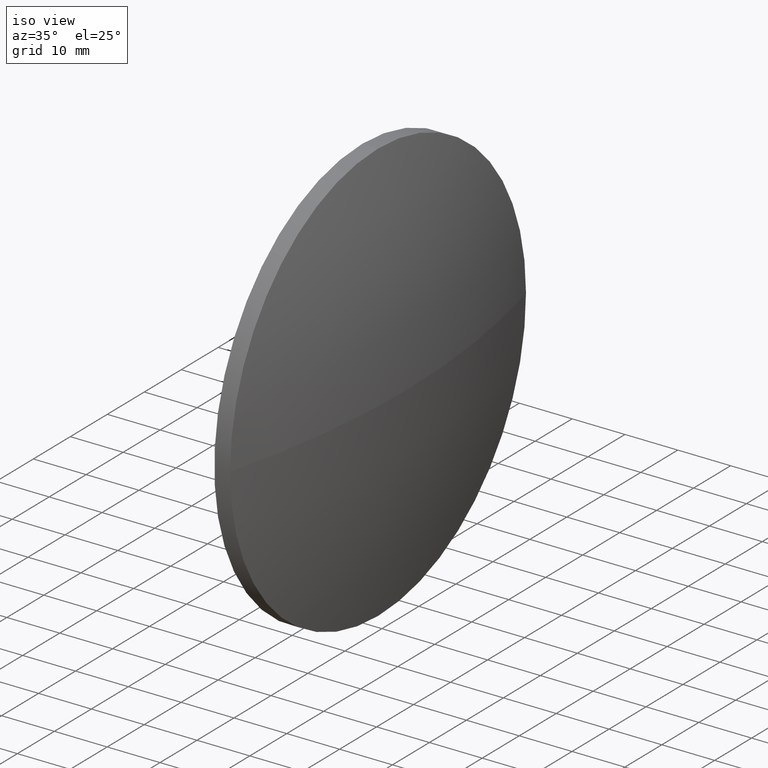
[diagram: clean part render]
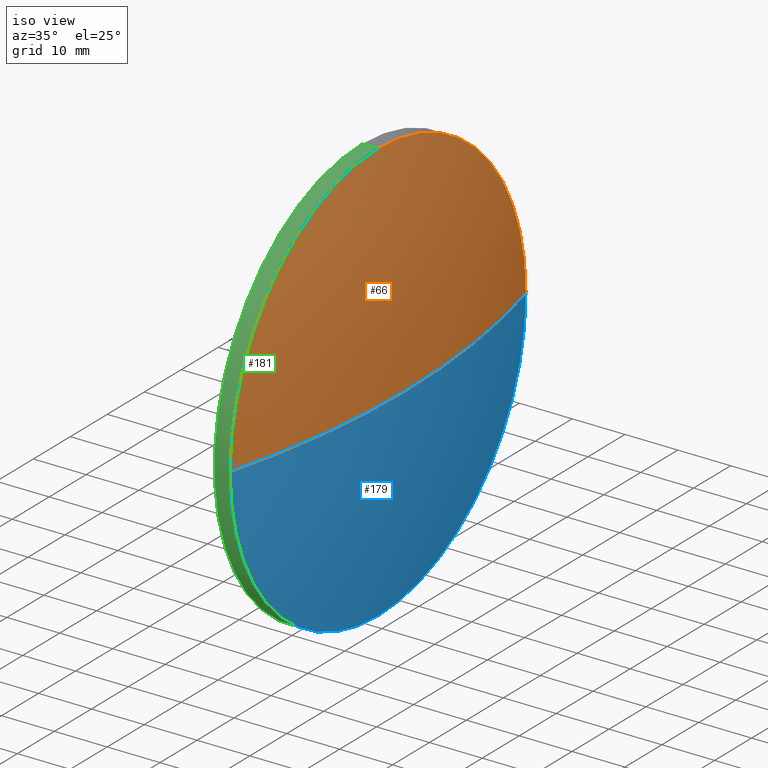
[diagram: same view with three faces highlighted in distinct colors, each labeled with its STEP entity id]
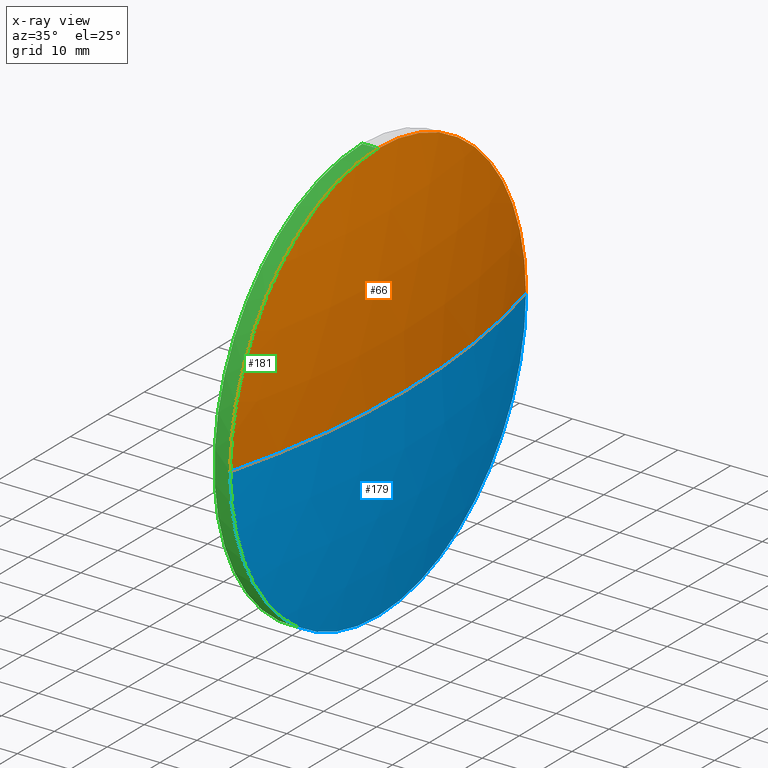
[diagram: x-ray of the same camera — body ghosted, the three highlighted faces saturated]
A machine part, iso view with three faces highlighted in distinct colors.
The next image is the same camera in x-ray (body ghosted, the three faces saturated) — at least one of them is partly hidden behind the body in this view.
Their STEP definitions:

[orange] entity #66 — the highlighted spherical surface has radius 155.006 mm.
#9 = ORIENTED_EDGE ( 'NONE', *, *, #149, .T. ) ;
#10 = AXIS2_PLACEMENT_3D ( 'NONE', #29, #44, #157 ) ;
#13 = DIRECTION ( 'NONE',  ( 0.0000000000000000000, 0.0000000000000000000, 1.000000000000000000 ) ) ;
#17 = DIRECTION ( 'NONE',  ( 0.0000000000000000000, -1.000000000000000000, -1.224646799147353200E-016 ) ) ;
#19 = AXIS2_PLACEMENT_3D ( 'NONE', #95, #152, #71 ) ;
#24 = SPHERICAL_SURFACE ( 'NONE', #19, 155.0059523809526600 ) ;
#29 = CARTESIAN_POINT ( 'NONE',  ( 79.19314184306821900, 130.4671098528244800, 0.0000000000000000000 ) ) ;
#44 = DIRECTION ( 'NONE',  ( 0.0000000000000000000, 0.0000000000000000000, -1.000000000000000000 ) ) ;
#46 = CARTESIAN_POINT ( 'NONE',  ( 234.1990942240208800, 130.4671098528244800, 0.0000000000000000000 ) ) ;
#50 = CARTESIAN_POINT ( 'NONE',  ( 79.19314184306821900, 130.4671098528244800, 0.0000000000000000000 ) ) ;
#55 = ORIENTED_EDGE ( 'NONE', *, *, #87, .F. ) ;
#59 = CARTESIAN_POINT ( 'NONE',  ( 228.9490942240209100, 130.4671098528244200, 0.0000000000000000000 ) ) ;
#61 = CIRCLE ( 'NONE', #128, 40.00000000000000700 ) ;
#66 = ADVANCED_FACE ( 'NONE', ( #170 ), #24, .T. ) ;
#67 = EDGE_LOOP ( 'NONE', ( #89, #9, #161, #55 ) ) ;
#70 = DIRECTION ( 'NONE',  ( 0.0000000000000000000, 0.0000000000000000000, 1.000000000000000000 ) ) ;
#71 = DIRECTION ( 'NONE',  ( 0.0000000000000000000, -1.000000000000000000, 0.0000000000000000000 ) ) ;
#76 = CARTESIAN_POINT ( 'NONE',  ( 228.9490942240209100, 130.4671098528244200, 40.00000000000000700 ) ) ;
#77 = AXIS2_PLACEMENT_3D ( 'NONE', #50, #101, #17 ) ;
#78 = EDGE_CURVE ( 'NONE', #150, #145, #61, .T. ) ;
#87 = EDGE_CURVE ( 'NONE', #125, #150, #132, .T. ) ;
#89 = ORIENTED_EDGE ( 'NONE', *, *, #105, .F. ) ;
#95 = CARTESIAN_POINT ( 'NONE',  ( 79.19314184306821900, 130.4671098528244800, 0.0000000000000000000 ) ) ;
#96 = DIRECTION ( 'NONE',  ( -1.000000000000000000, -0.0000000000000000000, -0.0000000000000000000 ) ) ;
#97 = CARTESIAN_POINT ( 'NONE',  ( 228.9490942240208800, 170.4671098528244200, 4.898587196589408300E-015 ) ) ;
#101 = DIRECTION ( 'NONE',  ( 0.0000000000000000000, -1.224646799147353200E-016, 1.000000000000000000 ) ) ;
#103 = VERTEX_POINT ( 'NONE', #46 ) ;
#105 = EDGE_CURVE ( 'NONE', #103, #125, #163, .T. ) ;
#125 = VERTEX_POINT ( 'NONE', #129 ) ;
#128 = AXIS2_PLACEMENT_3D ( 'NONE', #59, #96, #13 ) ;
#129 = CARTESIAN_POINT ( 'NONE',  ( 228.9490942240208800, 90.46710985282446400, 0.0000000000000000000 ) ) ;
#132 = CIRCLE ( 'NONE', #144, 40.00000000000000700 ) ;
#144 = AXIS2_PLACEMENT_3D ( 'NONE', #165, #154, #70 ) ;
#145 = VERTEX_POINT ( 'NONE', #97 ) ;
#149 = EDGE_CURVE ( 'NONE', #103, #145, #162, .T. ) ;
#150 = VERTEX_POINT ( 'NONE', #76 ) ;
#152 = DIRECTION ( 'NONE',  ( 0.0000000000000000000, 0.0000000000000000000, 1.000000000000000000 ) ) ;
#154 = DIRECTION ( 'NONE',  ( -1.000000000000000000, -0.0000000000000000000, -0.0000000000000000000 ) ) ;
#157 = DIRECTION ( 'NONE',  ( -1.000000000000000000, 0.0000000000000000000, 0.0000000000000000000 ) ) ;
#161 = ORIENTED_EDGE ( 'NONE', *, *, #78, .F. ) ;
#162 = CIRCLE ( 'NONE', #77, 155.0059523809526600 ) ;
#163 = CIRCLE ( 'NONE', #10, 155.0059523809526600 ) ;
#165 = CARTESIAN_POINT ( 'NONE',  ( 228.9490942240209100, 130.4671098528244200, 0.0000000000000000000 ) ) ;
#170 = FACE_OUTER_BOUND ( 'NONE', #67, .T. ) ;

[blue] entity #179 — the highlighted spherical surface has radius 155.006 mm.
#1 = DIRECTION ( 'NONE',  ( 0.0000000000000000000, 0.0000000000000000000, 1.000000000000000000 ) ) ;
#2 = AXIS2_PLACEMENT_3D ( 'NONE', #110, #141, #62 ) ;
#5 = ORIENTED_EDGE ( 'NONE', *, *, #105, .T. ) ;
#6 = CARTESIAN_POINT ( 'NONE',  ( 79.19314184306821900, 130.4671098528244800, 0.0000000000000000000 ) ) ;
#10 = AXIS2_PLACEMENT_3D ( 'NONE', #29, #44, #157 ) ;
#17 = DIRECTION ( 'NONE',  ( 0.0000000000000000000, -1.000000000000000000, -1.224646799147353200E-016 ) ) ;
#22 = CIRCLE ( 'NONE', #107, 40.00000000000000700 ) ;
#29 = CARTESIAN_POINT ( 'NONE',  ( 79.19314184306821900, 130.4671098528244800, 0.0000000000000000000 ) ) ;
#30 = AXIS2_PLACEMENT_3D ( 'NONE', #6, #34, #31 ) ;
#31 = DIRECTION ( 'NONE',  ( 0.0000000000000000000, -1.000000000000000000, 0.0000000000000000000 ) ) ;
#34 = DIRECTION ( 'NONE',  ( 0.0000000000000000000, 0.0000000000000000000, 1.000000000000000000 ) ) ;
#37 = ORIENTED_EDGE ( 'NONE', *, *, #164, .F. ) ;
#44 = DIRECTION ( 'NONE',  ( 0.0000000000000000000, 0.0000000000000000000, -1.000000000000000000 ) ) ;
#45 = SPHERICAL_SURFACE ( 'NONE', #30, 155.0059523809526600 ) ;
#46 = CARTESIAN_POINT ( 'NONE',  ( 234.1990942240208800, 130.4671098528244800, 0.0000000000000000000 ) ) ;
#50 = CARTESIAN_POINT ( 'NONE',  ( 79.19314184306821900, 130.4671098528244800, 0.0000000000000000000 ) ) ;
#52 = ORIENTED_EDGE ( 'NONE', *, *, #94, .F. ) ;
#60 = DIRECTION ( 'NONE',  ( -1.000000000000000000, -0.0000000000000000000, -0.0000000000000000000 ) ) ;
#62 = DIRECTION ( 'NONE',  ( 0.0000000000000000000, 0.0000000000000000000, 1.000000000000000000 ) ) ;
#74 = CARTESIAN_POINT ( 'NONE',  ( 228.9490942240209100, 130.4671098528244200, -40.00000000000000700 ) ) ;
#77 = AXIS2_PLACEMENT_3D ( 'NONE', #50, #101, #17 ) ;
#82 = CIRCLE ( 'NONE', #2, 40.00000000000000700 ) ;
#85 = CARTESIAN_POINT ( 'NONE',  ( 228.9490942240209100, 130.4671098528244200, 0.0000000000000000000 ) ) ;
#94 = EDGE_CURVE ( 'NONE', #121, #125, #22, .T. ) ;
#97 = CARTESIAN_POINT ( 'NONE',  ( 228.9490942240208800, 170.4671098528244200, 4.898587196589408300E-015 ) ) ;
#101 = DIRECTION ( 'NONE',  ( 0.0000000000000000000, -1.224646799147353200E-016, 1.000000000000000000 ) ) ;
#103 = VERTEX_POINT ( 'NONE', #46 ) ;
#105 = EDGE_CURVE ( 'NONE', #103, #125, #163, .T. ) ;
#107 = AXIS2_PLACEMENT_3D ( 'NONE', #85, #60, #1 ) ;
#110 = CARTESIAN_POINT ( 'NONE',  ( 228.9490942240209100, 130.4671098528244200, 0.0000000000000000000 ) ) ;
#112 = FACE_OUTER_BOUND ( 'NONE', #166, .T. ) ;
#121 = VERTEX_POINT ( 'NONE', #74 ) ;
#125 = VERTEX_POINT ( 'NONE', #129 ) ;
#129 = CARTESIAN_POINT ( 'NONE',  ( 228.9490942240208800, 90.46710985282446400, 0.0000000000000000000 ) ) ;
#131 = ORIENTED_EDGE ( 'NONE', *, *, #149, .F. ) ;
#141 = DIRECTION ( 'NONE',  ( -1.000000000000000000, -0.0000000000000000000, -0.0000000000000000000 ) ) ;
#145 = VERTEX_POINT ( 'NONE', #97 ) ;
#149 = EDGE_CURVE ( 'NONE', #103, #145, #162, .T. ) ;
#157 = DIRECTION ( 'NONE',  ( -1.000000000000000000, 0.0000000000000000000, 0.0000000000000000000 ) ) ;
#162 = CIRCLE ( 'NONE', #77, 155.0059523809526600 ) ;
#163 = CIRCLE ( 'NONE', #10, 155.0059523809526600 ) ;
#164 = EDGE_CURVE ( 'NONE', #145, #121, #82, .T. ) ;
#166 = EDGE_LOOP ( 'NONE', ( #131, #5, #52, #37 ) ) ;
#179 = ADVANCED_FACE ( 'NONE', ( #112 ), #45, .T. ) ;

[green] entity #181 — the highlighted cylindrical surface (partial cylindrical patch) has radius 40 mm, axis along (-1, -0, -0).
#1 = DIRECTION ( 'NONE',  ( 0.0000000000000000000, 0.0000000000000000000, 1.000000000000000000 ) ) ;
#4 = CARTESIAN_POINT ( 'NONE',  ( 225.9490942240209100, 130.4671098528244200, 0.0000000000000000000 ) ) ;
#22 = CIRCLE ( 'NONE', #107, 40.00000000000000700 ) ;
#26 = VERTEX_POINT ( 'NONE', #142 ) ;
#33 = CIRCLE ( 'NONE', #146, 40.00000000000000700 ) ;
#35 = EDGE_CURVE ( 'NONE', #150, #81, #65, .T. ) ;
#36 = DIRECTION ( 'NONE',  ( -1.000000000000000000, -0.0000000000000000000, -0.0000000000000000000 ) ) ;
#38 = DIRECTION ( 'NONE',  ( -1.000000000000000000, -0.0000000000000000000, -0.0000000000000000000 ) ) ;
#40 = ORIENTED_EDGE ( 'NONE', *, *, #35, .T. ) ;
#43 = ORIENTED_EDGE ( 'NONE', *, *, #136, .F. ) ;
#47 = AXIS2_PLACEMENT_3D ( 'NONE', #102, #36, #126 ) ;
#58 = DIRECTION ( 'NONE',  ( 0.0000000000000000000, 0.0000000000000000000, 1.000000000000000000 ) ) ;
#60 = DIRECTION ( 'NONE',  ( -1.000000000000000000, -0.0000000000000000000, -0.0000000000000000000 ) ) ;
#65 = LINE ( 'NONE', #140, #135 ) ;
#70 = DIRECTION ( 'NONE',  ( 0.0000000000000000000, 0.0000000000000000000, 1.000000000000000000 ) ) ;
#74 = CARTESIAN_POINT ( 'NONE',  ( 228.9490942240209100, 130.4671098528244200, -40.00000000000000700 ) ) ;
#76 = CARTESIAN_POINT ( 'NONE',  ( 228.9490942240209100, 130.4671098528244200, 40.00000000000000700 ) ) ;
#81 = VERTEX_POINT ( 'NONE', #117 ) ;
#83 = DIRECTION ( 'NONE',  ( -1.000000000000000000, -0.0000000000000000000, -0.0000000000000000000 ) ) ;
#84 = ORIENTED_EDGE ( 'NONE', *, *, #151, .F. ) ;
#85 = CARTESIAN_POINT ( 'NONE',  ( 228.9490942240209100, 130.4671098528244200, 0.0000000000000000000 ) ) ;
#87 = EDGE_CURVE ( 'NONE', #125, #150, #132, .T. ) ;
#88 = FACE_OUTER_BOUND ( 'NONE', #106, .T. ) ;
#94 = EDGE_CURVE ( 'NONE', #121, #125, #22, .T. ) ;
#99 = DIRECTION ( 'NONE',  ( -1.000000000000000000, -0.0000000000000000000, -0.0000000000000000000 ) ) ;
#100 = CYLINDRICAL_SURFACE ( 'NONE', #47, 40.00000000000000700 ) ;
#102 = CARTESIAN_POINT ( 'NONE',  ( 217.9945825323866300, 130.4671098528244200, 0.0000000000000000000 ) ) ;
#106 = EDGE_LOOP ( 'NONE', ( #84, #115, #183, #40, #43 ) ) ;
#107 = AXIS2_PLACEMENT_3D ( 'NONE', #85, #60, #1 ) ;
#115 = ORIENTED_EDGE ( 'NONE', *, *, #94, .T. ) ;
#117 = CARTESIAN_POINT ( 'NONE',  ( 225.9490942240209100, 130.4671098528244200, 40.00000000000000700 ) ) ;
#121 = VERTEX_POINT ( 'NONE', #74 ) ;
#123 = VECTOR ( 'NONE', #38, 1000.000000000000000 ) ;
#125 = VERTEX_POINT ( 'NONE', #129 ) ;
#126 = DIRECTION ( 'NONE',  ( 0.0000000000000000000, 0.0000000000000000000, 1.000000000000000000 ) ) ;
#127 = LINE ( 'NONE', #143, #123 ) ;
#129 = CARTESIAN_POINT ( 'NONE',  ( 228.9490942240208800, 90.46710985282446400, 0.0000000000000000000 ) ) ;
#132 = CIRCLE ( 'NONE', #144, 40.00000000000000700 ) ;
#135 = VECTOR ( 'NONE', #83, 1000.000000000000000 ) ;
#136 = EDGE_CURVE ( 'NONE', #26, #81, #33, .T. ) ;
#140 = CARTESIAN_POINT ( 'NONE',  ( 217.9945825323866300, 130.4671098528244200, 40.00000000000000700 ) ) ;
#142 = CARTESIAN_POINT ( 'NONE',  ( 225.9490942240209100, 130.4671098528244200, -40.00000000000000700 ) ) ;
#143 = CARTESIAN_POINT ( 'NONE',  ( 217.9945825323866300, 130.4671098528244200, -40.00000000000000700 ) ) ;
#144 = AXIS2_PLACEMENT_3D ( 'NONE', #165, #154, #70 ) ;
#146 = AXIS2_PLACEMENT_3D ( 'NONE', #4, #99, #58 ) ;
#150 = VERTEX_POINT ( 'NONE', #76 ) ;
#151 = EDGE_CURVE ( 'NONE', #121, #26, #127, .T. ) ;
#154 = DIRECTION ( 'NONE',  ( -1.000000000000000000, -0.0000000000000000000, -0.0000000000000000000 ) ) ;
#165 = CARTESIAN_POINT ( 'NONE',  ( 228.9490942240209100, 130.4671098528244200, 0.0000000000000000000 ) ) ;
#181 = ADVANCED_FACE ( 'NONE', ( #88 ), #100, .T. ) ;
#183 = ORIENTED_EDGE ( 'NONE', *, *, #87, .T. ) ;